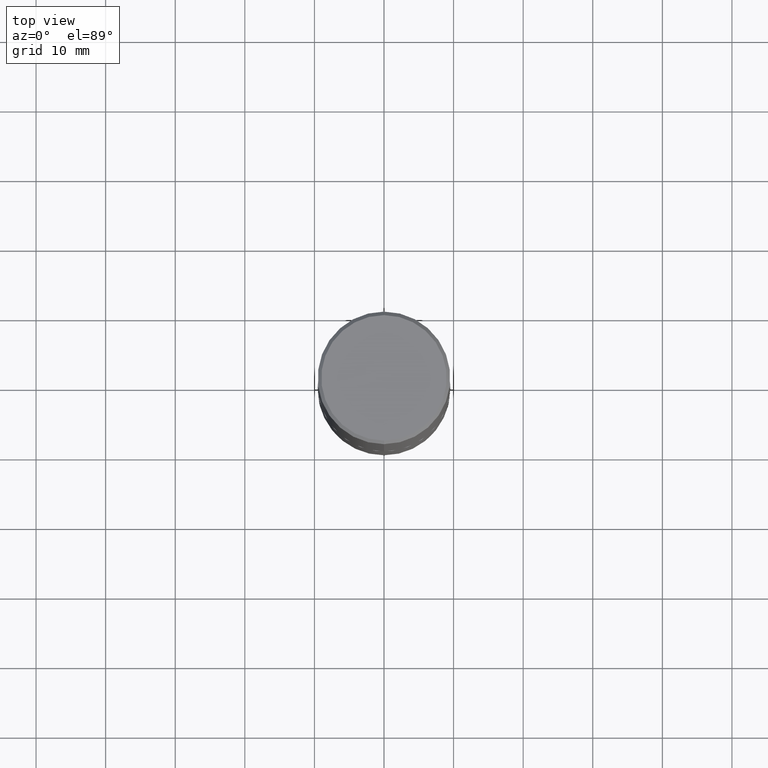
[diagram: clean part render]
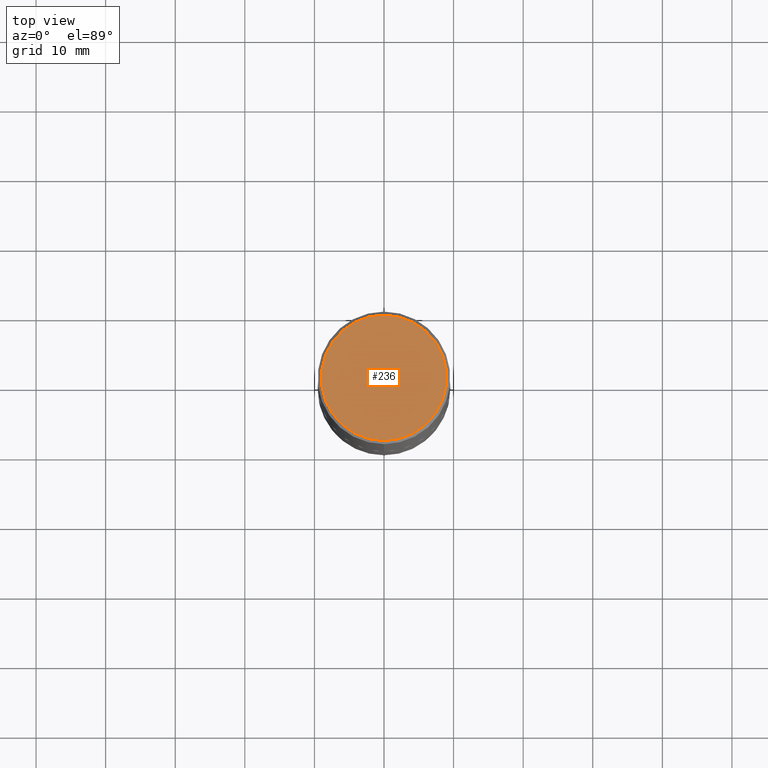
[diagram: same view with one face highlighted and labeled with its STEP entity id]
A machine part, top view. The second image highlights one B-rep face of the part: STEP entity #236.
In plain terms, the highlighted planar face has unit normal (0, -0, -1).
Its self-contained STEP definition (entity closure, byte-faithful):
#1 = AXIS2_PLACEMENT_3D ( 'NONE', #201, #288, #337 ) ;
#21 = CIRCLE ( 'NONE', #284, 0.3549999999999999267 ) ;
#38 = ORIENTED_EDGE ( 'NONE', *, *, #390, .T. ) ;
#61 = EDGE_CURVE ( 'NONE', #315, #131, #78, .T. ) ;
#78 = CIRCLE ( 'NONE', #1, 0.3549999999999999267 ) ;
#84 = DIRECTION ( 'NONE',  ( -6.982962677686265922E-15, -1.000000000000000000, 3.492026078173082534E-15 ) ) ;
#131 = VERTEX_POINT ( 'NONE', #208 ) ;
#149 = EDGE_LOOP ( 'NONE', ( #297, #38 ) ) ;
#172 = DIRECTION ( 'NONE',  ( 2.445088416744134186E-29, -3.492026078173082929E-15, -1.000000000000000000 ) ) ;
#201 = CARTESIAN_POINT ( 'NONE',  ( -2.092106461435936214E-45, 2.987904352095746828E-31, 8.556363226413599125E-17 ) ) ;
#208 = CARTESIAN_POINT ( 'NONE',  ( -2.504081769186608216E-15, -0.3549999999999999267, 1.325232890015579917E-15 ) ) ;
#236 = ADVANCED_FACE ( 'NONE', ( #393 ), #335, .F. ) ;
#238 = CARTESIAN_POINT ( 'NONE',  ( -2.092106461435936214E-45, 2.987904352095746828E-31, 8.556363226413599125E-17 ) ) ;
#242 = CARTESIAN_POINT ( 'NONE',  ( 2.548781377355487113E-15, 0.3549999999999999267, -1.154105625487308107E-15 ) ) ;
#284 = AXIS2_PLACEMENT_3D ( 'NONE', #238, #374, #84 ) ;
#288 = DIRECTION ( 'NONE',  ( -2.445088416744134467E-29, 3.492026078173082929E-15, 1.000000000000000000 ) ) ;
#296 = AXIS2_PLACEMENT_3D ( 'NONE', #389, #172, #298 ) ;
#297 = ORIENTED_EDGE ( 'NONE', *, *, #61, .T. ) ;
#298 = DIRECTION ( 'NONE',  ( 6.982962677686265922E-15, 1.000000000000000000, -3.492026078173082929E-15 ) ) ;
#315 = VERTEX_POINT ( 'NONE', #242 ) ;
#335 = PLANE ( 'NONE',  #296 ) ;
#337 = DIRECTION ( 'NONE',  ( -6.982962677686265922E-15, -1.000000000000000000, 3.492026078173082534E-15 ) ) ;
#374 = DIRECTION ( 'NONE',  ( -2.445088416744134467E-29, 3.492026078173082929E-15, 1.000000000000000000 ) ) ;
#389 = CARTESIAN_POINT ( 'NONE',  ( 2.478951750578623815E-15, 0.3549999999999999267, -1.196887441619376108E-15 ) ) ;
#390 = EDGE_CURVE ( 'NONE', #131, #315, #21, .T. ) ;
#393 = FACE_OUTER_BOUND ( 'NONE', #149, .T. ) ;